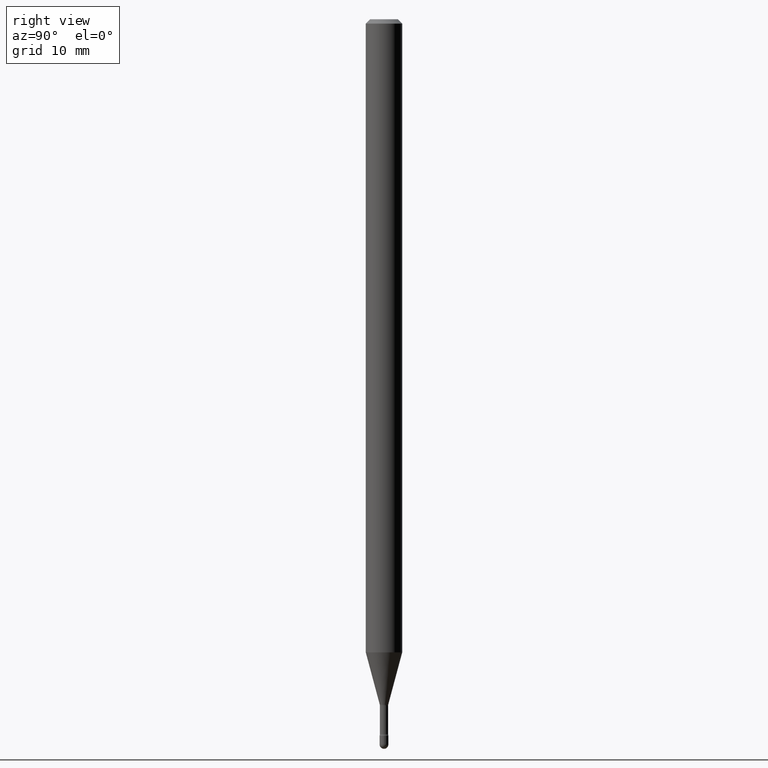
[diagram: clean part render]
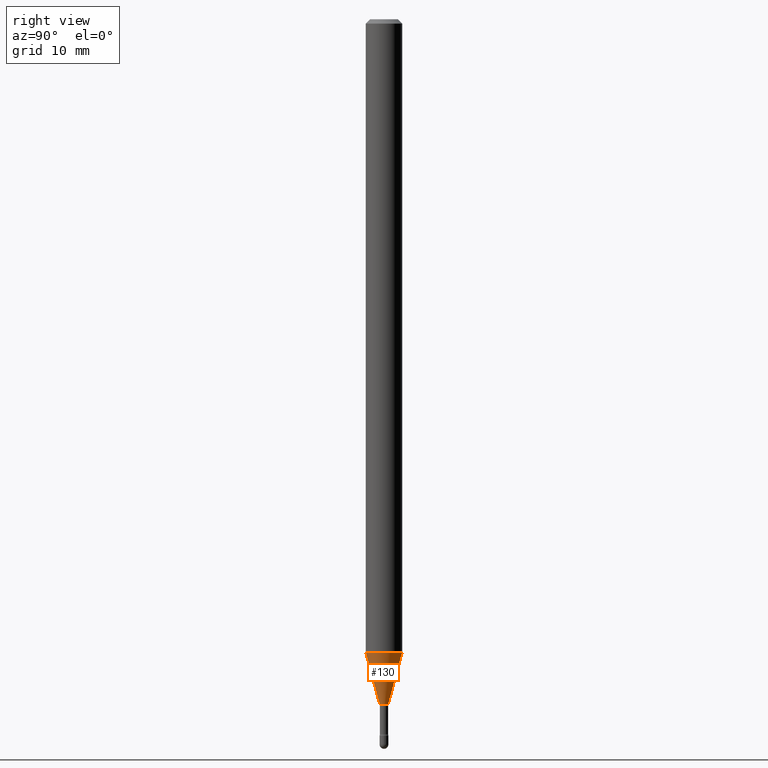
[diagram: same view with one face highlighted and labeled with its STEP entity id]
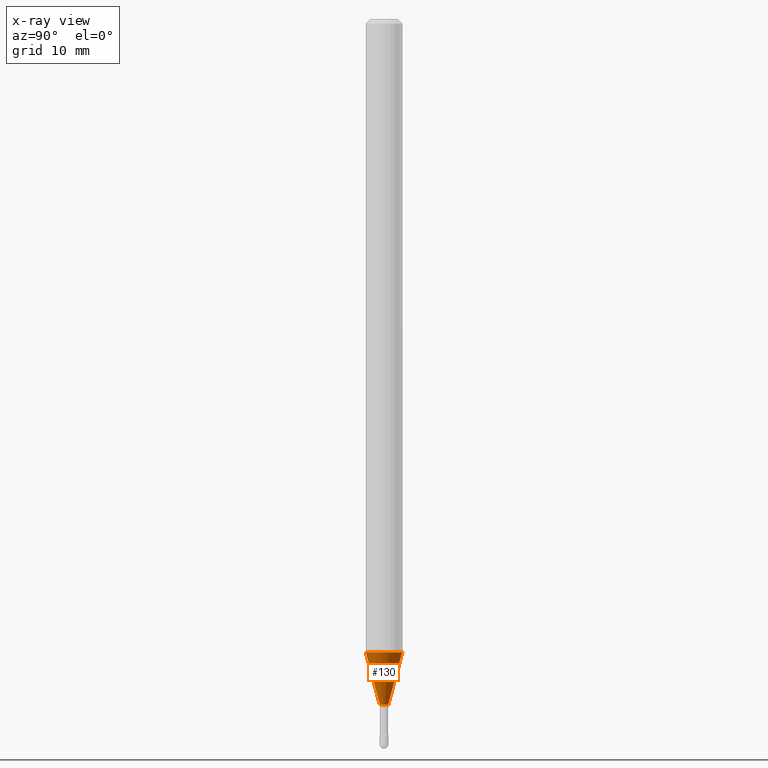
[diagram: x-ray of the same camera — body ghosted, the highlighted face saturated]
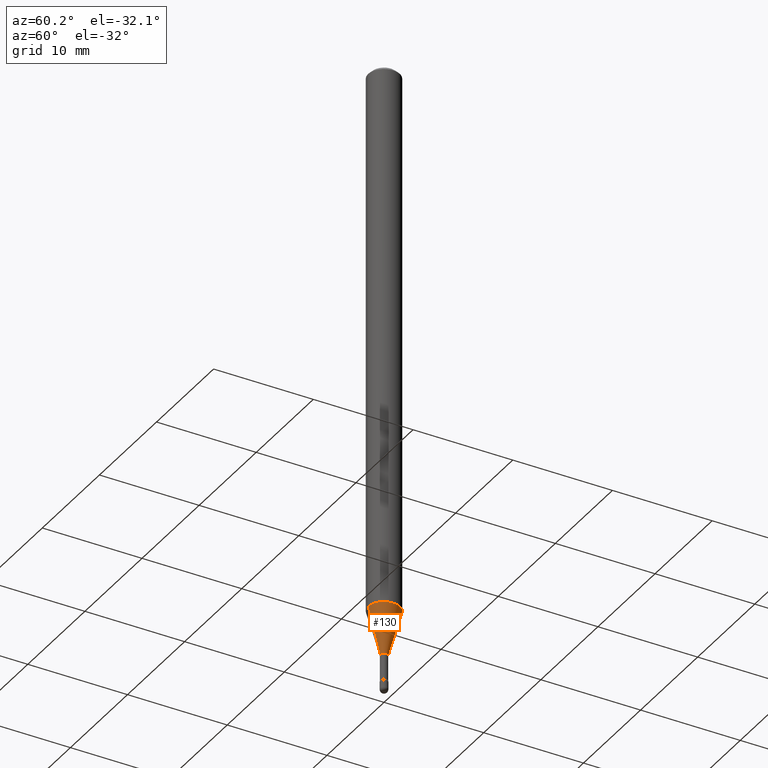
[diagram: same view with one face highlighted and labeled with its STEP entity id]
A machine part, right view. The second image highlights one B-rep face of the part: STEP entity #130.
The next image is the same camera in x-ray: the body ghosted, the highlighted face saturated — about 0% of this face is hidden behind the body in this view.
A second angle (auxiliary view) of the same face is appended — the face is thin or edge-on in the first view.
In plain terms, the highlighted conical surface has half-angle 15 deg.
Its self-contained STEP definition (entity closure, byte-faithful):
#13 = CARTESIAN_POINT ( 'NONE',  ( 2.739537045417235021E-16, 0.01461111260565578496, -2.348092501787273356 ) ) ;
#18 = AXIS2_PLACEMENT_3D ( 'NONE', #86, #124, #80 ) ;
#39 = EDGE_CURVE ( 'NONE', #242, #502, #249, .T. ) ;
#40 = CARTESIAN_POINT ( 'NONE',  ( 4.440892098501154699E-16, 0.06249999999999240885, -2.169368740913667271 ) ) ;
#45 = VECTOR ( 'NONE', #85, 39.37007874015749564 ) ;
#55 = AXIS2_PLACEMENT_3D ( 'NONE', #76, #240, #327 ) ;
#76 = CARTESIAN_POINT ( 'NONE',  ( 5.742296198833706335E-29, -8.198164725891078954E-15, -2.348092501787273356 ) ) ;
#80 = DIRECTION ( 'NONE',  ( -6.982962677686265922E-15, -1.000000000000000000, 4.370956789862821150E-15 ) ) ;
#85 = DIRECTION ( 'NONE',  ( -1.807323732225328562E-15, -0.2588190451025179639, 0.9659258262890689783 ) ) ;
#86 = CARTESIAN_POINT ( 'NONE',  ( 5.305224502584683767E-29, -7.574165956269636631E-15, -2.169368740913666826 ) ) ;
#108 = DIRECTION ( 'NONE',  ( -6.982962677686265922E-15, -1.000000000000000000, 0.000000000000000000 ) ) ;
#111 = DIRECTION ( 'NONE',  ( -2.445515325509068465E-29, 3.491414720523559495E-15, 1.000000000000000000 ) ) ;
#124 = DIRECTION ( 'NONE',  ( -2.445515325509068465E-29, 3.491414720523559495E-15, 1.000000000000000000 ) ) ;
#126 = CARTESIAN_POINT ( 'NONE',  ( -1.020288540047655014E-16, -0.01461111260567218156, -2.348092501787273356 ) ) ;
#130 = ADVANCED_FACE ( 'NONE', ( #536 ), #530, .T. ) ;
#174 = EDGE_LOOP ( 'NONE', ( #537, #383, #354, #429 ) ) ;
#175 = LINE ( 'NONE', #215, #45 ) ;
#193 = CIRCLE ( 'NONE', #18, 0.06250000000000000000 ) ;
#215 = CARTESIAN_POINT ( 'NONE',  ( -1.020288540047655014E-16, -0.01461111260567218156, -2.348092501787273356 ) ) ;
#240 = DIRECTION ( 'NONE',  ( -2.445515325509068465E-29, 3.491414720523559495E-15, 1.000000000000000000 ) ) ;
#242 = VERTEX_POINT ( 'NONE', #126 ) ;
#249 = CIRCLE ( 'NONE', #562, 0.01461111260566398326 ) ;
#254 = EDGE_CURVE ( 'NONE', #242, #371, #175, .T. ) ;
#289 = CARTESIAN_POINT ( 'NONE',  ( 5.742296198833706335E-29, -8.198164725891078954E-15, -2.348092501787273356 ) ) ;
#295 = CARTESIAN_POINT ( 'NONE',  ( -4.364351673553385199E-16, -0.06250000000000757727, -2.169368740913666826 ) ) ;
#298 = VERTEX_POINT ( 'NONE', #40 ) ;
#311 = EDGE_CURVE ( 'NONE', #502, #298, #432, .T. ) ;
#327 = DIRECTION ( 'NONE',  ( -6.982962677686265922E-15, -1.000000000000000000, 0.000000000000000000 ) ) ;
#346 = EDGE_CURVE ( 'NONE', #371, #298, #193, .T. ) ;
#354 = ORIENTED_EDGE ( 'NONE', *, *, #346, .F. ) ;
#362 = VECTOR ( 'NONE', #553, 39.37007874015747433 ) ;
#371 = VERTEX_POINT ( 'NONE', #295 ) ;
#383 = ORIENTED_EDGE ( 'NONE', *, *, #311, .T. ) ;
#388 = CARTESIAN_POINT ( 'NONE',  ( 1.038181992333311399E-16, 0.01461111260565578496, -2.348092501787273356 ) ) ;
#429 = ORIENTED_EDGE ( 'NONE', *, *, #254, .F. ) ;
#432 = LINE ( 'NONE', #388, #362 ) ;
#502 = VERTEX_POINT ( 'NONE', #13 ) ;
#530 = CONICAL_SURFACE ( 'NONE', #55, 0.01461111260566398326, 0.2617993877991501295 ) ;
#536 = FACE_OUTER_BOUND ( 'NONE', #174, .T. ) ;
#537 = ORIENTED_EDGE ( 'NONE', *, *, #39, .T. ) ;
#553 = DIRECTION ( 'NONE',  ( 1.839019923739599526E-15, 0.2588190451025248473, 0.9659258262890673130 ) ) ;
#562 = AXIS2_PLACEMENT_3D ( 'NONE', #289, #111, #108 ) ;